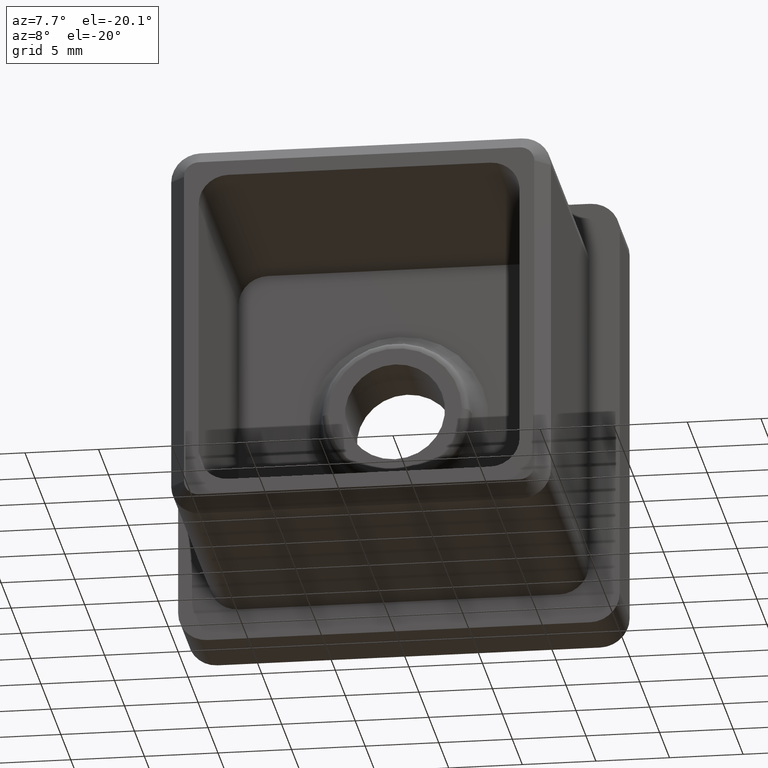
[diagram: clean part render]
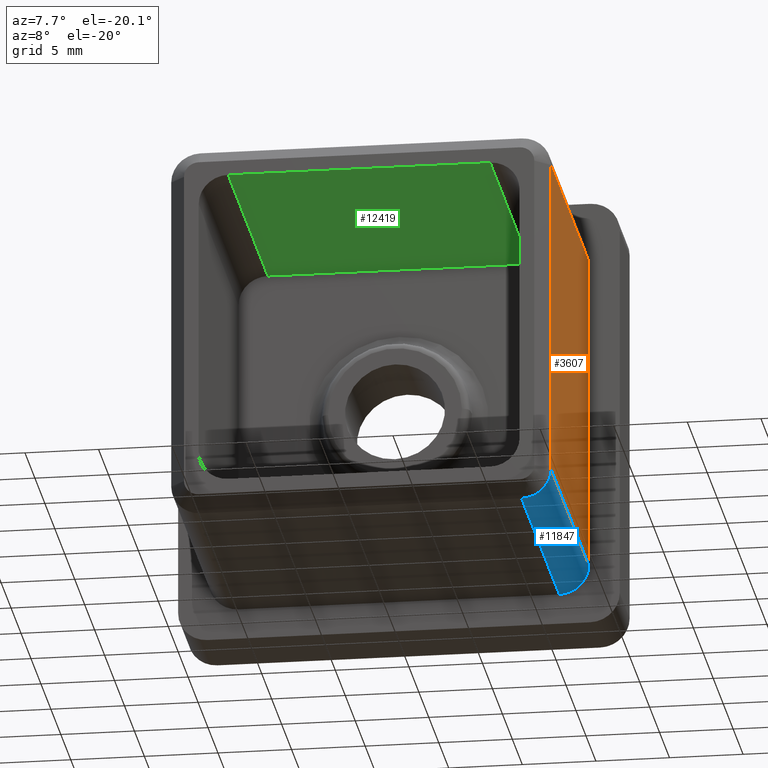
[diagram: same view with three faces highlighted in distinct colors, each labeled with its STEP entity id]
A machine part, auxiliary view with three faces highlighted in distinct colors.
Their STEP definitions:

[orange] entity #3607 — the highlighted planar face has unit normal (-1, 0, -0).
#640 = CARTESIAN_POINT ( 'NONE',  ( 12.90000000000000600, -19.00000000000000000, -10.90000000000000400 ) ) ;
#1019 = LINE ( 'NONE', #11030, #17073 ) ;
#1623 = LINE ( 'NONE', #7436, #4075 ) ;
#2608 = CARTESIAN_POINT ( 'NONE',  ( 12.90000000000000600, 0.0000000000000000000, 10.90000000000000600 ) ) ;
#2614 = VERTEX_POINT ( 'NONE', #3893 ) ;
#2628 = ORIENTED_EDGE ( 'NONE', *, *, #13863, .T. ) ;
#3512 = CARTESIAN_POINT ( 'NONE',  ( 12.90000000000000600, -19.00000000000000000, -10.90000000000000400 ) ) ;
#3607 = ADVANCED_FACE ( 'NONE', ( #10843 ), #17950, .F. ) ;
#3675 = DIRECTION ( 'NONE',  ( -0.0000000000000000000, 0.0000000000000000000, 1.000000000000000000 ) ) ;
#3787 = DIRECTION ( 'NONE',  ( -1.000000000000000000, 0.0000000000000000000, -0.0000000000000000000 ) ) ;
#3857 = DIRECTION ( 'NONE',  ( 0.0000000000000000000, 1.000000000000000000, 0.0000000000000000000 ) ) ;
#3893 = CARTESIAN_POINT ( 'NONE',  ( 12.90000000000000600, 0.0000000000000000000, -10.90000000000000400 ) ) ;
#4075 = VECTOR ( 'NONE', #15835, 1000.000000000000000 ) ;
#5243 = ORIENTED_EDGE ( 'NONE', *, *, #15648, .T. ) ;
#5954 = VERTEX_POINT ( 'NONE', #2608 ) ;
#6038 = DIRECTION ( 'NONE',  ( -0.0000000000000000000, -0.0000000000000000000, 1.000000000000000000 ) ) ;
#6277 = DIRECTION ( 'NONE',  ( 0.0000000000000000000, 0.0000000000000000000, -1.000000000000000000 ) ) ;
#7436 = CARTESIAN_POINT ( 'NONE',  ( 12.90000000000000600, -20.00000000000000000, 10.90000000000000600 ) ) ;
#7764 = VECTOR ( 'NONE', #6038, 1000.000000000000000 ) ;
#8385 = LINE ( 'NONE', #14562, #7764 ) ;
#9327 = ORIENTED_EDGE ( 'NONE', *, *, #16328, .T. ) ;
#9781 = EDGE_LOOP ( 'NONE', ( #9327, #10308, #5243, #2628 ) ) ;
#10021 = EDGE_CURVE ( 'NONE', #10979, #12858, #11627, .T. ) ;
#10308 = ORIENTED_EDGE ( 'NONE', *, *, #10021, .T. ) ;
#10843 = FACE_OUTER_BOUND ( 'NONE', #9781, .T. ) ;
#10979 = VERTEX_POINT ( 'NONE', #15131 ) ;
#11030 = CARTESIAN_POINT ( 'NONE',  ( 12.90000000000000600, -20.00000000000000000, -10.90000000000000400 ) ) ;
#11627 = LINE ( 'NONE', #3512, #12544 ) ;
#12188 = CARTESIAN_POINT ( 'NONE',  ( 12.90000000000000600, -20.00000000000000000, 12.90000000000000600 ) ) ;
#12544 = VECTOR ( 'NONE', #6277, 1000.000000000000000 ) ;
#12858 = VERTEX_POINT ( 'NONE', #640 ) ;
#13863 = EDGE_CURVE ( 'NONE', #2614, #5954, #8385, .T. ) ;
#14562 = CARTESIAN_POINT ( 'NONE',  ( 12.90000000000000600, 0.0000000000000000000, 12.90000000000000600 ) ) ;
#15131 = CARTESIAN_POINT ( 'NONE',  ( 12.90000000000000600, -19.00000000000000000, 10.90000000000000600 ) ) ;
#15266 = AXIS2_PLACEMENT_3D ( 'NONE', #12188, #3787, #3675 ) ;
#15648 = EDGE_CURVE ( 'NONE', #12858, #2614, #1019, .T. ) ;
#15835 = DIRECTION ( 'NONE',  ( -0.0000000000000000000, -1.000000000000000000, -0.0000000000000000000 ) ) ;
#16328 = EDGE_CURVE ( 'NONE', #5954, #10979, #1623, .T. ) ;
#17073 = VECTOR ( 'NONE', #3857, 1000.000000000000000 ) ;
#17950 = PLANE ( 'NONE',  #15266 ) ;

[blue] entity #11847 — the highlighted cylindrical surface (edge-blend (fillet) strip) has radius 2 mm, axis along (0, 1, 0).
#37 = DIRECTION ( 'NONE',  ( 0.0000000000000000000, 0.0000000000000000000, -1.000000000000000000 ) ) ;
#297 = VECTOR ( 'NONE', #18503, 1000.000000000000000 ) ;
#640 = CARTESIAN_POINT ( 'NONE',  ( 12.90000000000000600, -19.00000000000000000, -10.90000000000000400 ) ) ;
#976 = EDGE_LOOP ( 'NONE', ( #5373, #14313, #18529, #7755 ) ) ;
#1019 = LINE ( 'NONE', #11030, #17073 ) ;
#1768 = VERTEX_POINT ( 'NONE', #14701 ) ;
#1786 = AXIS2_PLACEMENT_3D ( 'NONE', #2587, #6727, #15374 ) ;
#2587 = CARTESIAN_POINT ( 'NONE',  ( 10.90000000000000600, -20.00000000000000000, -10.90000000000000400 ) ) ;
#2614 = VERTEX_POINT ( 'NONE', #3893 ) ;
#3759 = AXIS2_PLACEMENT_3D ( 'NONE', #7169, #4413, #37 ) ;
#3857 = DIRECTION ( 'NONE',  ( 0.0000000000000000000, 1.000000000000000000, 0.0000000000000000000 ) ) ;
#3893 = CARTESIAN_POINT ( 'NONE',  ( 12.90000000000000600, 0.0000000000000000000, -10.90000000000000400 ) ) ;
#4285 = CARTESIAN_POINT ( 'NONE',  ( 10.90000000000000400, -20.00000000000000000, -12.90000000000000600 ) ) ;
#4413 = DIRECTION ( 'NONE',  ( 0.0000000000000000000, 1.000000000000000000, 0.0000000000000000000 ) ) ;
#5040 = VERTEX_POINT ( 'NONE', #10022 ) ;
#5063 = CARTESIAN_POINT ( 'NONE',  ( 10.90000000000000600, 0.0000000000000000000, -10.90000000000000400 ) ) ;
#5373 = ORIENTED_EDGE ( 'NONE', *, *, #15648, .F. ) ;
#6688 = EDGE_CURVE ( 'NONE', #1768, #5040, #7690, .T. ) ;
#6727 = DIRECTION ( 'NONE',  ( 0.0000000000000000000, 1.000000000000000000, 0.0000000000000000000 ) ) ;
#7169 = CARTESIAN_POINT ( 'NONE',  ( 10.90000000000000600, -19.00000000000000000, -10.90000000000000400 ) ) ;
#7690 = LINE ( 'NONE', #4285, #297 ) ;
#7755 = ORIENTED_EDGE ( 'NONE', *, *, #8117, .F. ) ;
#8117 = EDGE_CURVE ( 'NONE', #2614, #1768, #10319, .T. ) ;
#9242 = EDGE_CURVE ( 'NONE', #12858, #5040, #18336, .T. ) ;
#9463 = DIRECTION ( 'NONE',  ( 0.0000000000000000000, 1.000000000000000000, 0.0000000000000000000 ) ) ;
#10022 = CARTESIAN_POINT ( 'NONE',  ( 10.90000000000000400, -19.00000000000000000, -12.90000000000000600 ) ) ;
#10319 = CIRCLE ( 'NONE', #10823, 2.000000000000000000 ) ;
#10823 = AXIS2_PLACEMENT_3D ( 'NONE', #5063, #9463, #17884 ) ;
#11030 = CARTESIAN_POINT ( 'NONE',  ( 12.90000000000000600, -20.00000000000000000, -10.90000000000000400 ) ) ;
#11847 = ADVANCED_FACE ( 'NONE', ( #14282 ), #16058, .T. ) ;
#12858 = VERTEX_POINT ( 'NONE', #640 ) ;
#14282 = FACE_OUTER_BOUND ( 'NONE', #976, .T. ) ;
#14313 = ORIENTED_EDGE ( 'NONE', *, *, #9242, .T. ) ;
#14701 = CARTESIAN_POINT ( 'NONE',  ( 10.90000000000000400, 0.0000000000000000000, -12.90000000000000600 ) ) ;
#15374 = DIRECTION ( 'NONE',  ( 0.0000000000000000000, 0.0000000000000000000, 1.000000000000000000 ) ) ;
#15648 = EDGE_CURVE ( 'NONE', #12858, #2614, #1019, .T. ) ;
#16058 = CYLINDRICAL_SURFACE ( 'NONE', #1786, 2.000000000000000000 ) ;
#17073 = VECTOR ( 'NONE', #3857, 1000.000000000000000 ) ;
#17884 = DIRECTION ( 'NONE',  ( 0.0000000000000000000, 0.0000000000000000000, 1.000000000000000000 ) ) ;
#18336 = CIRCLE ( 'NONE', #3759, 2.000000000000000000 ) ;
#18503 = DIRECTION ( 'NONE',  ( -0.0000000000000000000, -1.000000000000000000, -0.0000000000000000000 ) ) ;
#18529 = ORIENTED_EDGE ( 'NONE', *, *, #6688, .F. ) ;

[green] entity #12419 — the highlighted planar face has unit normal (0, 0, -1).
#451 = DIRECTION ( 'NONE',  ( 0.0000000000000000000, 0.0000000000000000000, -1.000000000000000000 ) ) ;
#725 = CARTESIAN_POINT ( 'NONE',  ( -10.90000000000000600, 0.0000000000000000000, 10.90000000000000600 ) ) ;
#970 = VECTOR ( 'NONE', #7941, 1000.000000000000000 ) ;
#2063 = ORIENTED_EDGE ( 'NONE', *, *, #17188, .T. ) ;
#2476 = EDGE_LOOP ( 'NONE', ( #14704, #4631, #2063, #14003 ) ) ;
#2514 = DIRECTION ( 'NONE',  ( 0.0000000000000000000, -1.000000000000000000, -0.0000000000000000000 ) ) ;
#4619 = VECTOR ( 'NONE', #13045, 1000.000000000000000 ) ;
#4631 = ORIENTED_EDGE ( 'NONE', *, *, #17645, .T. ) ;
#5760 = CARTESIAN_POINT ( 'NONE',  ( -8.900000000000005700, 0.0000000000000000000, 10.90000000000000600 ) ) ;
#6550 = VECTOR ( 'NONE', #8214, 1000.000000000000000 ) ;
#7004 = CARTESIAN_POINT ( 'NONE',  ( -10.90000000000000600, -20.00000000000000000, 10.90000000000000600 ) ) ;
#7878 = LINE ( 'NONE', #12286, #12576 ) ;
#7941 = DIRECTION ( 'NONE',  ( -1.000000000000000000, -0.0000000000000000000, -0.0000000000000000000 ) ) ;
#8027 = CARTESIAN_POINT ( 'NONE',  ( 8.900000000000007500, 0.0000000000000000000, 10.90000000000000600 ) ) ;
#8214 = DIRECTION ( 'NONE',  ( -1.000000000000000000, -0.0000000000000000000, -0.0000000000000000000 ) ) ;
#8970 = LINE ( 'NONE', #725, #6550 ) ;
#11673 = CARTESIAN_POINT ( 'NONE',  ( -10.90000000000000600, -20.00000000000000000, 10.90000000000000600 ) ) ;
#11719 = CARTESIAN_POINT ( 'NONE',  ( -8.900000000000005700, 0.0000000000000000000, 10.90000000000000600 ) ) ;
#11911 = LINE ( 'NONE', #7004, #970 ) ;
#12286 = CARTESIAN_POINT ( 'NONE',  ( 8.900000000000005700, -20.00000000000000000, 10.90000000000000600 ) ) ;
#12419 = ADVANCED_FACE ( 'NONE', ( #12630 ), #12818, .T. ) ;
#12576 = VECTOR ( 'NONE', #2514, 1000.000000000000000 ) ;
#12630 = FACE_OUTER_BOUND ( 'NONE', #2476, .T. ) ;
#12818 = PLANE ( 'NONE',  #17317 ) ;
#13045 = DIRECTION ( 'NONE',  ( -0.0000000000000000000, 1.000000000000000000, 0.0000000000000000000 ) ) ;
#13116 = LINE ( 'NONE', #11719, #4619 ) ;
#13758 = VERTEX_POINT ( 'NONE', #8027 ) ;
#14003 = ORIENTED_EDGE ( 'NONE', *, *, #14184, .T. ) ;
#14184 = EDGE_CURVE ( 'NONE', #15376, #17270, #13116, .T. ) ;
#14603 = DIRECTION ( 'NONE',  ( -1.000000000000000000, 0.0000000000000000000, -0.0000000000000000000 ) ) ;
#14704 = ORIENTED_EDGE ( 'NONE', *, *, #18023, .F. ) ;
#14992 = VERTEX_POINT ( 'NONE', #15965 ) ;
#15376 = VERTEX_POINT ( 'NONE', #16072 ) ;
#15965 = CARTESIAN_POINT ( 'NONE',  ( 8.900000000000007500, -20.00000000000000000, 10.90000000000000600 ) ) ;
#16072 = CARTESIAN_POINT ( 'NONE',  ( -8.900000000000005700, -20.00000000000000000, 10.90000000000000600 ) ) ;
#17188 = EDGE_CURVE ( 'NONE', #14992, #15376, #11911, .T. ) ;
#17270 = VERTEX_POINT ( 'NONE', #5760 ) ;
#17317 = AXIS2_PLACEMENT_3D ( 'NONE', #11673, #451, #14603 ) ;
#17645 = EDGE_CURVE ( 'NONE', #13758, #14992, #7878, .T. ) ;
#18023 = EDGE_CURVE ( 'NONE', #13758, #17270, #8970, .T. ) ;